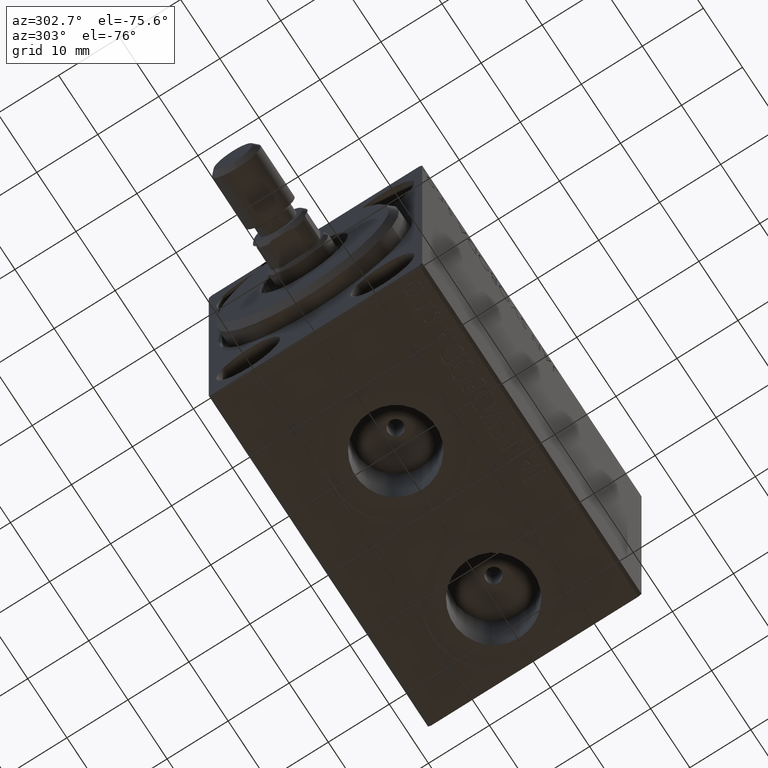
[diagram: clean part render]
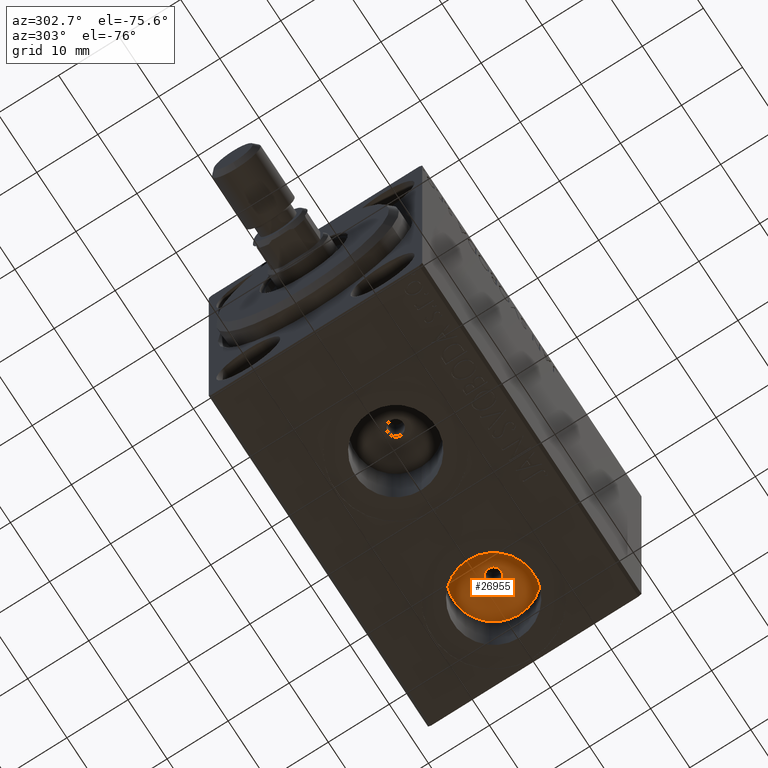
[diagram: same view with one face highlighted and labeled with its STEP entity id]
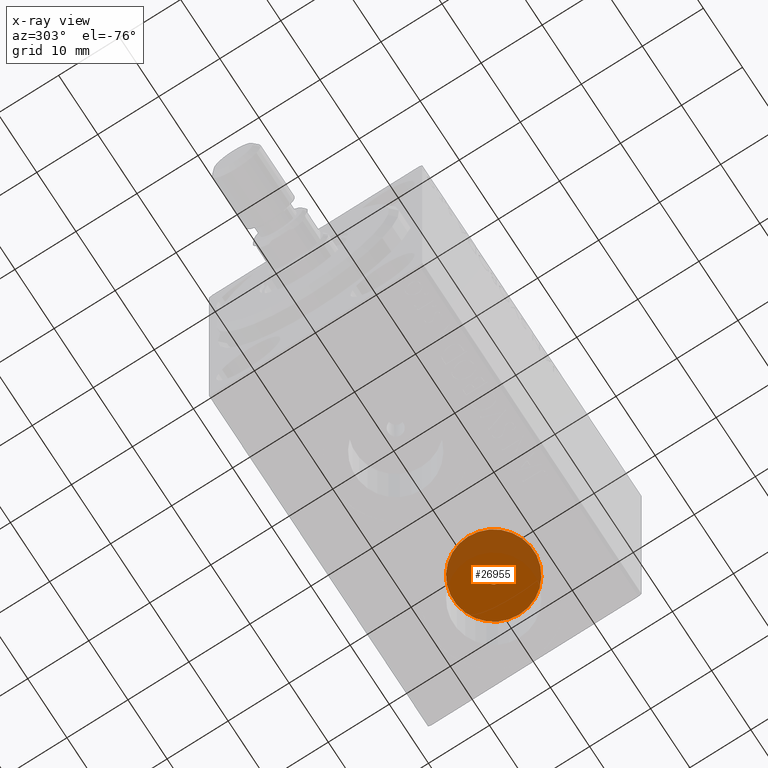
[diagram: x-ray of the same camera — body ghosted, the highlighted face saturated]
A machine part, auxiliary view. The second image highlights one B-rep face of the part: STEP entity #26955.
The next image is the same camera in x-ray: the body ghosted, the highlighted face saturated — about 33% of this face is hidden behind the body in this view.
In plain terms, the highlighted planar face has unit normal (0, 0, -1).
Its self-contained STEP definition (entity closure, byte-faithful):
#1262 = CIRCLE ( 'NONE', #35790, 6.580000000000002736 ) ;
#2842 = CARTESIAN_POINT ( 'NONE',  ( 45.50000000000000000, -5.801946424232537925E-15, -14.50000000000000355 ) ) ;
#3719 = CARTESIAN_POINT ( 'NONE',  ( 52.07999999999999829, -4.982785615438341465E-15, -14.50000000000000355 ) ) ;
#5144 = CARTESIAN_POINT ( 'NONE',  ( 46.74999999999999289, -5.648865574339118990E-15, -14.50000000000000355 ) ) ;
#6600 = VERTEX_POINT ( 'NONE', #43175 ) ;
#7368 = DIRECTION ( 'NONE',  ( 0.000000000000000000, 0.000000000000000000, -1.000000000000000000 ) ) ;
#8413 = ORIENTED_EDGE ( 'NONE', *, *, #44096, .T. ) ;
#9343 = EDGE_LOOP ( 'NONE', ( #29790, #14956 ) ) ;
#9677 = CIRCLE ( 'NONE', #42749, 1.249999999999994227 ) ;
#9811 = VERTEX_POINT ( 'NONE', #5144 ) ;
#11019 = CARTESIAN_POINT ( 'NONE',  ( 44.25000000000000711, -5.801946424232537925E-15, -14.50000000000000355 ) ) ;
#11869 = AXIS2_PLACEMENT_3D ( 'NONE', #28069, #7368, #17714 ) ;
#14956 = ORIENTED_EDGE ( 'NONE', *, *, #25353, .F. ) ;
#17570 = CARTESIAN_POINT ( 'NONE',  ( 0.000000000000000000, 0.000000000000000000, -14.50000000000000355 ) ) ;
#17714 = DIRECTION ( 'NONE',  ( -1.000000000000000000, 0.000000000000000000, 0.000000000000000000 ) ) ;
#18396 = DIRECTION ( 'NONE',  ( -1.000000000000000000, 0.000000000000000000, 0.000000000000000000 ) ) ;
#19009 = DIRECTION ( 'NONE',  ( 0.000000000000000000, 0.000000000000000000, -1.000000000000000000 ) ) ;
#23876 = DIRECTION ( 'NONE',  ( 0.000000000000000000, 0.000000000000000000, -1.000000000000000000 ) ) ;
#23884 = CARTESIAN_POINT ( 'NONE',  ( 45.50000000000000000, -5.788603209277299718E-15, -14.50000000000000355 ) ) ;
#24329 = PLANE ( 'NONE',  #32734 ) ;
#25353 = EDGE_CURVE ( 'NONE', #9811, #36520, #9677, .T. ) ;
#26955 = ADVANCED_FACE ( 'NONE', ( #27258, #41221 ), #24329, .T. ) ;
#27131 = EDGE_LOOP ( 'NONE', ( #8413, #44280 ) ) ;
#27134 = DIRECTION ( 'NONE',  ( -1.000000000000000000, 0.000000000000000000, 0.000000000000000000 ) ) ;
#27258 = FACE_BOUND ( 'NONE', #9343, .T. ) ;
#28069 = CARTESIAN_POINT ( 'NONE',  ( 45.50000000000000000, -5.801946424232537925E-15, -14.50000000000000355 ) ) ;
#29398 = VERTEX_POINT ( 'NONE', #3719 ) ;
#29790 = ORIENTED_EDGE ( 'NONE', *, *, #36823, .F. ) ;
#32452 = EDGE_CURVE ( 'NONE', #29398, #6600, #1262, .T. ) ;
#32734 = AXIS2_PLACEMENT_3D ( 'NONE', #17570, #23876, #37863 ) ;
#32741 = CIRCLE ( 'NONE', #11869, 1.249999999999994227 ) ;
#35693 = AXIS2_PLACEMENT_3D ( 'NONE', #23884, #41465, #18396 ) ;
#35790 = AXIS2_PLACEMENT_3D ( 'NONE', #43335, #19009, #36807 ) ;
#36520 = VERTEX_POINT ( 'NONE', #11019 ) ;
#36807 = DIRECTION ( 'NONE',  ( -1.000000000000000000, 0.000000000000000000, 0.000000000000000000 ) ) ;
#36823 = EDGE_CURVE ( 'NONE', #36520, #9811, #32741, .T. ) ;
#37863 = DIRECTION ( 'NONE',  ( -1.000000000000000000, 0.000000000000000000, -0.000000000000000000 ) ) ;
#40740 = CIRCLE ( 'NONE', #35693, 6.580000000000002736 ) ;
#41221 = FACE_OUTER_BOUND ( 'NONE', #27131, .T. ) ;
#41465 = DIRECTION ( 'NONE',  ( 0.000000000000000000, 0.000000000000000000, -1.000000000000000000 ) ) ;
#42749 = AXIS2_PLACEMENT_3D ( 'NONE', #2842, #44024, #27134 ) ;
#43175 = CARTESIAN_POINT ( 'NONE',  ( 38.91999999999999460, -5.788603209277299718E-15, -14.50000000000000355 ) ) ;
#43335 = CARTESIAN_POINT ( 'NONE',  ( 45.50000000000000000, -5.788603209277299718E-15, -14.50000000000000355 ) ) ;
#44024 = DIRECTION ( 'NONE',  ( 0.000000000000000000, 0.000000000000000000, -1.000000000000000000 ) ) ;
#44096 = EDGE_CURVE ( 'NONE', #6600, #29398, #40740, .T. ) ;
#44280 = ORIENTED_EDGE ( 'NONE', *, *, #32452, .T. ) ;